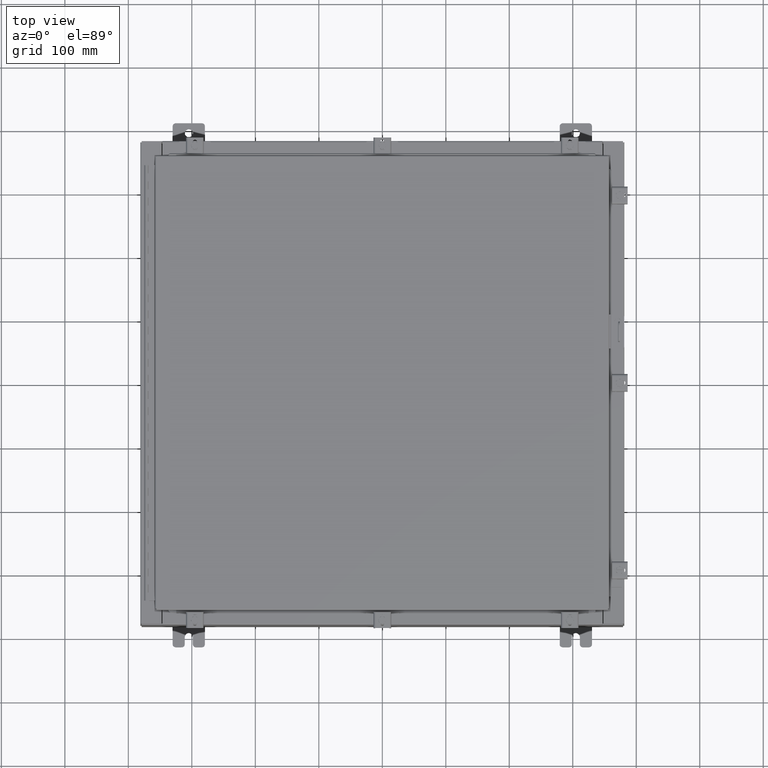
[diagram: clean part render]
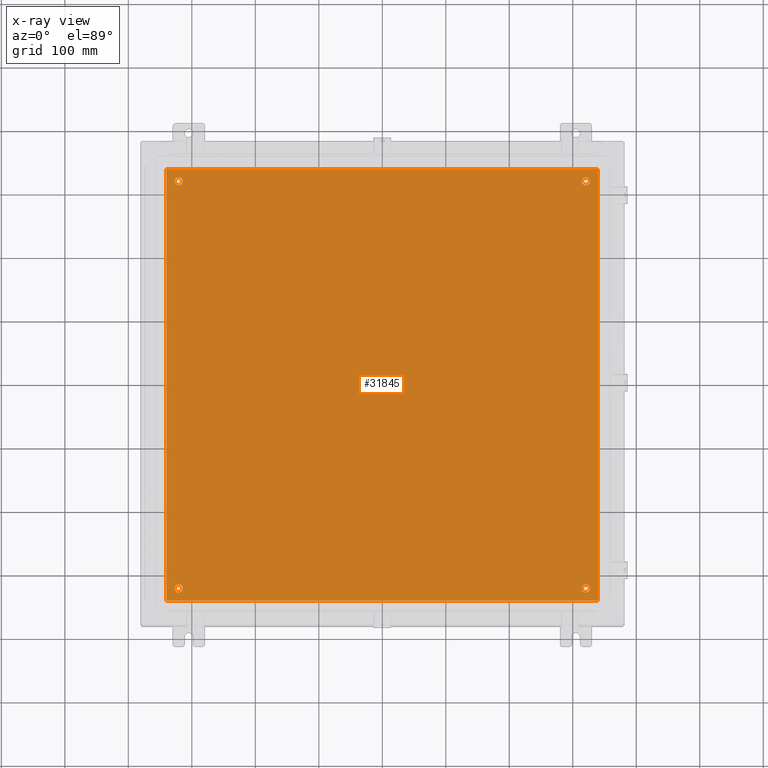
[diagram: x-ray — body ghosted, one internal face saturated and labeled with its STEP entity id]
A machine part, top view, then the same camera in x-ray: the body is ghosted and one INTERNAL B-rep face — a face not visible from any outside direction — is saturated and labeled: STEP entity #31845.
In plain terms, the highlighted planar face has unit normal (0, 0, -1).
Its self-contained STEP definition (entity closure, byte-faithful):
#157 = FACE_BOUND ( 'NONE', #816, .T. ) ;
#816 = EDGE_LOOP ( 'NONE', ( #9753, #25306 ) ) ;
#863 = DIRECTION ( 'NONE',  ( -1.000000000000000000, 0.0000000000000000000, 0.0000000000000000000 ) ) ;
#2629 = DIRECTION ( 'NONE',  ( 0.0000000000000000000, 0.0000000000000000000, -1.000000000000000000 ) ) ;
#2893 = AXIS2_PLACEMENT_3D ( 'NONE', #9298, #30065, #12269 ) ;
#3030 = DIRECTION ( 'NONE',  ( -0.0000000000000000000, -0.0000000000000000000, 1.000000000000000000 ) ) ;
#3297 = EDGE_CURVE ( 'NONE', #9696, #5510, #7005, .T. ) ;
#3317 = VERTEX_POINT ( 'NONE', #36940 ) ;
#3336 = CARTESIAN_POINT ( 'NONE',  ( 12.37500000000000400, -12.62500000000000000, -0.1039999999999999800 ) ) ;
#3690 = CARTESIAN_POINT ( 'NONE',  ( -12.87500000000000500, 12.62500000000000000, -0.1039999999999999800 ) ) ;
#3936 = EDGE_LOOP ( 'NONE', ( #31831, #12694 ) ) ;
#4279 = ORIENTED_EDGE ( 'NONE', *, *, #15665, .F. ) ;
#4365 = CARTESIAN_POINT ( 'NONE',  ( -13.38299999999999900, 13.38299999999999700, -0.1040000000000009100 ) ) ;
#4497 = DIRECTION ( 'NONE',  ( 1.000000000000000000, -0.0000000000000000000, -0.0000000000000000000 ) ) ;
#5510 = VERTEX_POINT ( 'NONE', #21799 ) ;
#5674 = ORIENTED_EDGE ( 'NONE', *, *, #19567, .T. ) ;
#5746 = AXIS2_PLACEMENT_3D ( 'NONE', #20433, #2629, #23403 ) ;
#6139 = CARTESIAN_POINT ( 'NONE',  ( -12.62500000000000400, -12.62500000000000000, -0.1039999999999999800 ) ) ;
#6593 = CARTESIAN_POINT ( 'NONE',  ( 12.62500000000000400, 12.62500000000000000, -0.1039999999999999800 ) ) ;
#6936 = EDGE_CURVE ( 'NONE', #37839, #16958, #27896, .T. ) ;
#7005 = CIRCLE ( 'NONE', #26758, 0.2500000000000008900 ) ;
#7204 = FACE_BOUND ( 'NONE', #29631, .T. ) ;
#7367 = DIRECTION ( 'NONE',  ( 0.0000000000000000000, -1.000000000000000000, 0.0000000000000000000 ) ) ;
#7739 = CARTESIAN_POINT ( 'NONE',  ( -12.62500000000000400, -12.62500000000000000, -0.1039999999999999800 ) ) ;
#8728 = CIRCLE ( 'NONE', #38059, 0.2500000000000008900 ) ;
#8798 = CARTESIAN_POINT ( 'NONE',  ( 12.87500000000000500, -12.62500000000000000, -0.1039999999999999800 ) ) ;
#9118 = DIRECTION ( 'NONE',  ( -1.000000000000000000, 0.0000000000000000000, 0.0000000000000000000 ) ) ;
#9298 = CARTESIAN_POINT ( 'NONE',  ( 12.62500000000000400, 12.62500000000000000, -0.1039999999999999800 ) ) ;
#9413 = VECTOR ( 'NONE', #22649, 39.37007874015748100 ) ;
#9558 = DIRECTION ( 'NONE',  ( -1.000000000000000000, 0.0000000000000000000, 0.0000000000000000000 ) ) ;
#9696 = VERTEX_POINT ( 'NONE', #37738 ) ;
#9753 = ORIENTED_EDGE ( 'NONE', *, *, #6936, .T. ) ;
#11556 = EDGE_LOOP ( 'NONE', ( #5674, #36741 ) ) ;
#11687 = VERTEX_POINT ( 'NONE', #27731 ) ;
#12269 = DIRECTION ( 'NONE',  ( -1.000000000000000000, 0.0000000000000000000, 0.0000000000000000000 ) ) ;
#12361 = CARTESIAN_POINT ( 'NONE',  ( 13.38299999999999900, -13.38299999999999700, -0.1040000000000009100 ) ) ;
#12694 = ORIENTED_EDGE ( 'NONE', *, *, #24948, .T. ) ;
#12843 = ORIENTED_EDGE ( 'NONE', *, *, #19736, .F. ) ;
#12861 = DIRECTION ( 'NONE',  ( -0.0000000000000000000, -0.0000000000000000000, 1.000000000000000000 ) ) ;
#12956 = AXIS2_PLACEMENT_3D ( 'NONE', #16941, #33761, #15736 ) ;
#13087 = CIRCLE ( 'NONE', #23402, 0.2500000000000008900 ) ;
#13224 = VECTOR ( 'NONE', #4497, 39.37007874015748100 ) ;
#13239 = EDGE_CURVE ( 'NONE', #34494, #15344, #8728, .T. ) ;
#14462 = PLANE ( 'NONE',  #5746 ) ;
#15051 = FACE_BOUND ( 'NONE', #11556, .T. ) ;
#15344 = VERTEX_POINT ( 'NONE', #26834 ) ;
#15354 = DIRECTION ( 'NONE',  ( 0.0000000000000000000, 1.000000000000000000, 0.0000000000000000000 ) ) ;
#15665 = EDGE_CURVE ( 'NONE', #17441, #30266, #36981, .T. ) ;
#15736 = DIRECTION ( 'NONE',  ( -1.000000000000000000, 0.0000000000000000000, 0.0000000000000000000 ) ) ;
#16671 = CIRCLE ( 'NONE', #17688, 0.2500000000000008900 ) ;
#16941 = CARTESIAN_POINT ( 'NONE',  ( 12.62500000000000400, -12.62500000000000000, -0.1039999999999999800 ) ) ;
#16958 = VERTEX_POINT ( 'NONE', #3336 ) ;
#17441 = VERTEX_POINT ( 'NONE', #35429 ) ;
#17599 = EDGE_CURVE ( 'NONE', #15344, #34494, #13087, .T. ) ;
#17688 = AXIS2_PLACEMENT_3D ( 'NONE', #30677, #12861, #33680 ) ;
#18216 = LINE ( 'NONE', #19672, #9413 ) ;
#18562 = CARTESIAN_POINT ( 'NONE',  ( 13.38299999999999900, -13.38299999999999700, -0.1040000000000009100 ) ) ;
#18668 = DIRECTION ( 'NONE',  ( -0.0000000000000000000, -0.0000000000000000000, 1.000000000000000000 ) ) ;
#18932 = EDGE_CURVE ( 'NONE', #16958, #37839, #16671, .T. ) ;
#19567 = EDGE_CURVE ( 'NONE', #11687, #22288, #28739, .T. ) ;
#19672 = CARTESIAN_POINT ( 'NONE',  ( 13.50000000000000000, 13.38299999999999900, -0.1040000000000009100 ) ) ;
#19736 = EDGE_CURVE ( 'NONE', #38512, #17441, #24041, .T. ) ;
#19832 = EDGE_CURVE ( 'NONE', #3317, #38512, #18216, .T. ) ;
#20433 = CARTESIAN_POINT ( 'NONE',  ( 0.0000000000000000000, 0.0000000000000000000, -0.1039999999999999800 ) ) ;
#20803 = CARTESIAN_POINT ( 'NONE',  ( -12.62500000000000400, 12.62500000000000000, -0.1039999999999999800 ) ) ;
#21301 = ORIENTED_EDGE ( 'NONE', *, *, #17599, .T. ) ;
#21312 = CARTESIAN_POINT ( 'NONE',  ( -13.38299999999999900, 13.38299999999999700, -0.1040000000000009100 ) ) ;
#21417 = EDGE_CURVE ( 'NONE', #22288, #11687, #24700, .T. ) ;
#21799 = CARTESIAN_POINT ( 'NONE',  ( -12.87500000000000500, -12.62500000000000000, -0.1039999999999999800 ) ) ;
#22208 = VECTOR ( 'NONE', #7367, 39.37007874015748100 ) ;
#22288 = VERTEX_POINT ( 'NONE', #34763 ) ;
#22649 = DIRECTION ( 'NONE',  ( -1.000000000000000000, -0.0000000000000000000, -0.0000000000000000000 ) ) ;
#23402 = AXIS2_PLACEMENT_3D ( 'NONE', #36518, #18668, #863 ) ;
#23403 = DIRECTION ( 'NONE',  ( -1.000000000000000000, 0.0000000000000000000, -0.0000000000000000000 ) ) ;
#23792 = DIRECTION ( 'NONE',  ( -1.000000000000000000, 0.0000000000000000000, 0.0000000000000000000 ) ) ;
#24041 = LINE ( 'NONE', #4365, #22208 ) ;
#24621 = VECTOR ( 'NONE', #15354, 39.37007874015748100 ) ;
#24700 = CIRCLE ( 'NONE', #2893, 0.2500000000000008900 ) ;
#24948 = EDGE_CURVE ( 'NONE', #5510, #9696, #32814, .T. ) ;
#25129 = ORIENTED_EDGE ( 'NONE', *, *, #19832, .F. ) ;
#25306 = ORIENTED_EDGE ( 'NONE', *, *, #18932, .T. ) ;
#26517 = DIRECTION ( 'NONE',  ( -1.000000000000000000, 0.0000000000000000000, 0.0000000000000000000 ) ) ;
#26758 = AXIS2_PLACEMENT_3D ( 'NONE', #7739, #32400, #26517 ) ;
#26834 = CARTESIAN_POINT ( 'NONE',  ( -12.37500000000000400, 12.62500000000000000, -0.1039999999999999800 ) ) ;
#26891 = DIRECTION ( 'NONE',  ( -0.0000000000000000000, -0.0000000000000000000, 1.000000000000000000 ) ) ;
#27335 = DIRECTION ( 'NONE',  ( -0.0000000000000000000, -0.0000000000000000000, 1.000000000000000000 ) ) ;
#27731 = CARTESIAN_POINT ( 'NONE',  ( 12.87500000000000500, 12.62500000000000000, -0.1039999999999999800 ) ) ;
#27896 = CIRCLE ( 'NONE', #12956, 0.2500000000000008900 ) ;
#28242 = CARTESIAN_POINT ( 'NONE',  ( -13.50000000000000000, -13.38299999999999900, -0.1040000000000009100 ) ) ;
#28739 = CIRCLE ( 'NONE', #38208, 0.2500000000000008900 ) ;
#29117 = AXIS2_PLACEMENT_3D ( 'NONE', #6139, #26891, #9118 ) ;
#29631 = EDGE_LOOP ( 'NONE', ( #21301, #33923 ) ) ;
#30065 = DIRECTION ( 'NONE',  ( -0.0000000000000000000, -0.0000000000000000000, 1.000000000000000000 ) ) ;
#30266 = VERTEX_POINT ( 'NONE', #18562 ) ;
#30586 = ORIENTED_EDGE ( 'NONE', *, *, #34463, .F. ) ;
#30677 = CARTESIAN_POINT ( 'NONE',  ( 12.62500000000000400, -12.62500000000000000, -0.1039999999999999800 ) ) ;
#30891 = FACE_BOUND ( 'NONE', #3936, .T. ) ;
#31831 = ORIENTED_EDGE ( 'NONE', *, *, #3297, .T. ) ;
#31845 = ADVANCED_FACE ( 'NONE', ( #30891, #157, #15051, #7204, #37903 ), #14462, .T. ) ;
#32400 = DIRECTION ( 'NONE',  ( -0.0000000000000000000, -0.0000000000000000000, 1.000000000000000000 ) ) ;
#32570 = LINE ( 'NONE', #12361, #24621 ) ;
#32814 = CIRCLE ( 'NONE', #29117, 0.2500000000000008900 ) ;
#33680 = DIRECTION ( 'NONE',  ( -1.000000000000000000, 0.0000000000000000000, 0.0000000000000000000 ) ) ;
#33761 = DIRECTION ( 'NONE',  ( -0.0000000000000000000, -0.0000000000000000000, 1.000000000000000000 ) ) ;
#33923 = ORIENTED_EDGE ( 'NONE', *, *, #13239, .T. ) ;
#34463 = EDGE_CURVE ( 'NONE', #30266, #3317, #32570, .T. ) ;
#34494 = VERTEX_POINT ( 'NONE', #3690 ) ;
#34763 = CARTESIAN_POINT ( 'NONE',  ( 12.37500000000000400, 12.62500000000000000, -0.1039999999999999800 ) ) ;
#34956 = EDGE_LOOP ( 'NONE', ( #4279, #12843, #25129, #30586 ) ) ;
#35429 = CARTESIAN_POINT ( 'NONE',  ( -13.38299999999999900, -13.38299999999999900, -0.1040000000000009100 ) ) ;
#36518 = CARTESIAN_POINT ( 'NONE',  ( -12.62500000000000400, 12.62500000000000000, -0.1039999999999999800 ) ) ;
#36741 = ORIENTED_EDGE ( 'NONE', *, *, #21417, .T. ) ;
#36940 = CARTESIAN_POINT ( 'NONE',  ( 13.38299999999999900, 13.38299999999999700, -0.1040000000000009100 ) ) ;
#36981 = LINE ( 'NONE', #28242, #13224 ) ;
#37738 = CARTESIAN_POINT ( 'NONE',  ( -12.37500000000000400, -12.62500000000000000, -0.1039999999999999800 ) ) ;
#37839 = VERTEX_POINT ( 'NONE', #8798 ) ;
#37903 = FACE_OUTER_BOUND ( 'NONE', #34956, .T. ) ;
#38059 = AXIS2_PLACEMENT_3D ( 'NONE', #20803, #3030, #23792 ) ;
#38208 = AXIS2_PLACEMENT_3D ( 'NONE', #6593, #27335, #9558 ) ;
#38512 = VERTEX_POINT ( 'NONE', #21312 ) ;